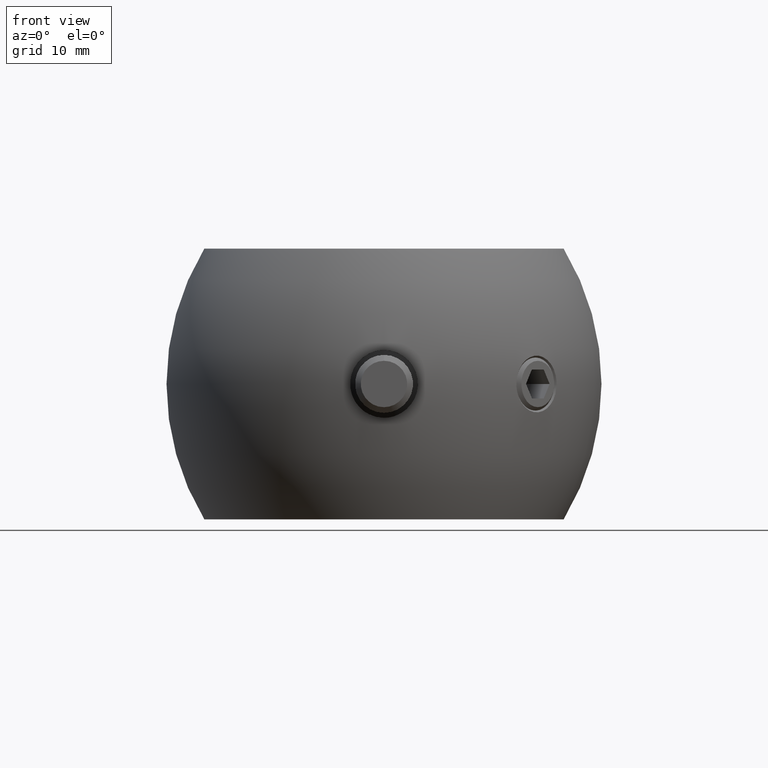
[diagram: clean part render]
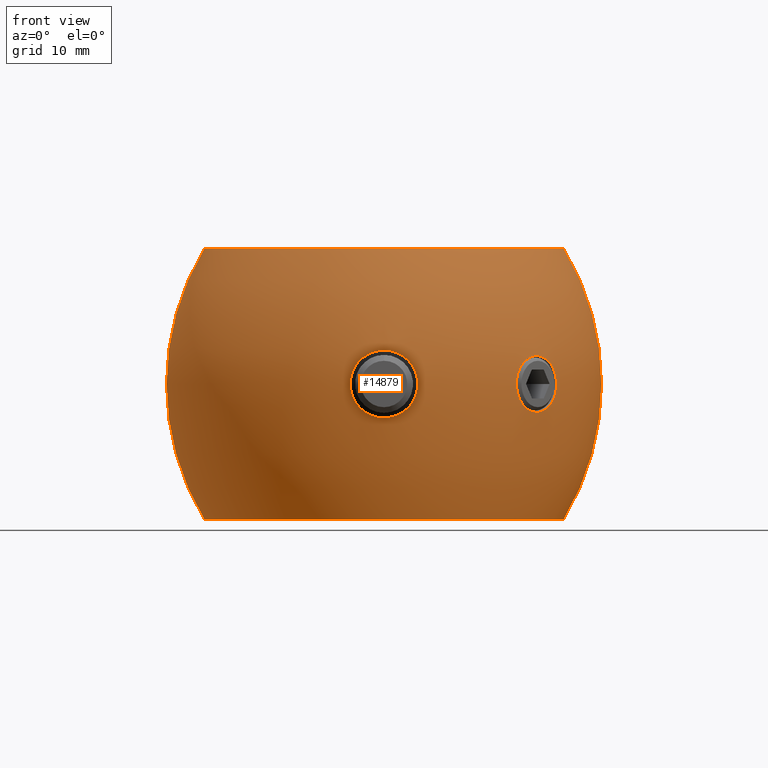
[diagram: same view with one face highlighted and labeled with its STEP entity id]
A machine part, front view. The second image highlights one B-rep face of the part: STEP entity #14879.
In plain terms, the highlighted toroidal blend (fillet) surface has major radius 4.5 mm and minor (blend) radius 27 mm.
Its self-contained STEP definition (entity closure, byte-faithful):
#87 = CARTESIAN_POINT ( 'NONE',  ( -2.636054769839903500, -22.24611148718643960, 2.313717903538718534 ) ) ;
#156 = CARTESIAN_POINT ( 'NONE',  ( -1.752568647007146430, -22.26074234995471457, 3.038236369988976282 ) ) ;
#163 = CARTESIAN_POINT ( 'NONE',  ( 14.07452576205326267, -17.48702692253786140, 1.686537269347121226 ) ) ;
#232 = CARTESIAN_POINT ( 'NONE',  ( 14.49937490066787937, -17.07597173101810029, 2.314854563820847311 ) ) ;
#312 = CARTESIAN_POINT ( 'NONE',  ( 14.42678072793478350, -17.14650586513689134, -2.231946754851112047 ) ) ;
#319 = CARTESIAN_POINT ( 'NONE',  ( 1.755802677963059777, -22.26069840967069524, -3.036302268960430872 ) ) ;
#376 = CARTESIAN_POINT ( 'NONE',  ( 13.73112644520099579, -17.81662382827775204, -0.6053072445539046109 ) ) ;
#382 = CARTESIAN_POINT ( 'NONE',  ( 3.477763543291899850, -22.22670003935306937, 0.4564514688398828013 ) ) ;
#441 = CARTESIAN_POINT ( 'NONE',  ( 15.54506048597273882, -16.04787891821417034, -2.920602461485179546 ) ) ;
#449 = CARTESIAN_POINT ( 'NONE',  ( 2.133817862500952067, -22.25516207144652370, 2.783716297770293391 ) ) ;
#591 = CARTESIAN_POINT ( 'NONE',  ( 1.128282969336798169, -22.26755440505721140, 3.321101806572006598 ) ) ;
#775 = CARTESIAN_POINT ( 'NONE',  ( 4.500000000000000888, -5.510910596163089556E-16, 0.000000000000000000 ) ) ;
#910 = CIRCLE ( 'NONE', #17827, 18.58679276123038804 ) ;
#1004 = B_SPLINE_CURVE_WITH_KNOTS ( 'NONE', 3,
 ( #3636, #17372, #12211, #10427, #376, #10638, #15486, #5277, #12291, #2074, #13934, #20600, #3785, #15694, #163, #1865, #3713, #232, #15620, #5421, #8848, #17224, #1935, #19087, #21224, #5559, #5699, #3854, #17790, #12578, #16068, #9065, #15908, #2360, #14270, #5849, #7390, #12428 ),
 .UNSPECIFIED., .F., .F.,
 ( 4, 2, 2, 2, 2, 2, 2, 2, 2, 2, 2, 2, 2, 2, 2, 2, 2, 2, 4 ),
 ( 3.580357266461583750E-05, 0.03128581485029084674, 0.06253582612791706852, 0.09378583740554330417, 0.1250358486831695537, 0.1562858599607958032, 0.1719108655996089696, 0.1875358712384221360, 0.2187858825160488296, 0.2500358937936755233, 0.2812859050713021891, 0.3125359163489288550, 0.3437859276265555208, 0.3750359389041821867, 0.3906609445429955474, 0.4062859501818088526, 0.4375359614594356295, 0.4687859727370622953, 0.5000359840146890722 ),
 .UNSPECIFIED. ) ;
#1416 = CARTESIAN_POINT ( 'NONE',  ( -3.322402730554638417, -22.23068354009784287, -1.124406855292983343 ) ) ;
#1484 = CARTESIAN_POINT ( 'NONE',  ( -3.387656487118473336, -22.22902001233188329, 0.9092316706515898295 ) ) ;
#1658 = CARTESIAN_POINT ( 'NONE',  ( 0.000000000000000000, 0.000000000000000000, 0.000000000000000000 ) ) ;
#1751 = CARTESIAN_POINT ( 'NONE',  ( -18.58679276123038804, 2.276225626145599495E-15, -13.99999999999999822 ) ) ;
#1862 = CARTESIAN_POINT ( 'NONE',  ( 17.52769042344284856, -14.03235436744223463, -1.608840742123130552 ) ) ;
#1865 = CARTESIAN_POINT ( 'NONE',  ( 14.19958612181998348, -17.36644332669997226, 1.916942017612078386 ) ) ;
#1935 = CARTESIAN_POINT ( 'NONE',  ( 15.36776116054227970, -16.22385622207960409, 2.879402078466278159 ) ) ;
#2005 = CARTESIAN_POINT ( 'NONE',  ( 16.15535362890569360, -15.43670857852692713, -2.893269995321523069 ) ) ;
#2039 = AXIS2_PLACEMENT_3D ( 'NONE', #1658, #20531, #16931 ) ;
#2074 = CARTESIAN_POINT ( 'NONE',  ( 13.79177725741186933, -17.75859018651640397, 0.9170787822494481656 ) ) ;
#2080 = CARTESIAN_POINT ( 'NONE',  ( 1.551643404138435267, -22.26327749582508631, -3.145665670389239388 ) ) ;
#2124 = EDGE_LOOP ( 'NONE', ( #2899, #12921 ) ) ;
#2157 = CARTESIAN_POINT ( 'NONE',  ( 1.127018110254823569, -22.26756543554039780, -3.321541802029492896 ) ) ;
#2326 = VERTEX_POINT ( 'NONE', #18958 ) ;
#2360 = CARTESIAN_POINT ( 'NONE',  ( 17.14596397229896851, -14.42734162629428596, 2.232764836883649906 ) ) ;
#2422 = B_SPLINE_CURVE_WITH_KNOTS ( 'NONE', 3,
 ( #4637, #18218, #4795, #6475, #19785, #11280, #4488, #16412, #4874, #6549, #10300, #17179, #1862, #19147, #6349, #9929, #11648, #17290, #15408, #7184, #2005, #5217, #5485, #441, #8924, #19148, #20875, #12072, #20806, #312, #14002, #13860, #8696, #6980 ),
 .UNSPECIFIED., .F., .F.,
 ( 4, 2, 2, 2, 2, 2, 2, 2, 2, 2, 2, 2, 2, 2, 2, 2, 4 ),
 ( 0.5000359840146890722, 0.5312859727370624618, 0.5625359614594358515, 0.5937859501818092411, 0.6250359389041827418, 0.6562859276265561315, 0.6875359163489295211, 0.7500358937936761894, 0.7812858825160498011, 0.7969108768772366069, 0.8125358712384235238, 0.8437858599607970245, 0.8750358486831705251, 0.9062858374055440258, 0.9375358261279176375, 0.9687858148502911382, 1.000035803572664639 ),
 .UNSPECIFIED. ) ;
#2729 = CARTESIAN_POINT ( 'NONE',  ( -3.320309168915752895, -22.23073552015256382, 1.130265281610048023 ) ) ;
#2899 = ORIENTED_EDGE ( 'NONE', *, *, #7484, .T. ) ;
#3112 = CARTESIAN_POINT ( 'NONE',  ( -3.145673842606141690, -22.23497318252552191, 1.551350592207500378 ) ) ;
#3636 = CARTESIAN_POINT ( 'NONE',  ( 13.98618652761251546, -17.57203174755905195, -1.494217667136909400 ) ) ;
#3713 = CARTESIAN_POINT ( 'NONE',  ( 14.29263461983206263, -17.27651359023667865, 2.057629418468958971 ) ) ;
#3720 = CARTESIAN_POINT ( 'NONE',  ( 2.781794847444853946, -22.24310699715626072, 2.136461789129161737 ) ) ;
#3785 = CARTESIAN_POINT ( 'NONE',  ( 13.96255126729314355, -17.59476613810143064, 1.440767580311695495 ) ) ;
#3854 = CARTESIAN_POINT ( 'NONE',  ( 16.37812529244224535, -15.21161893539405874, 2.819887269090419313 ) ) ;
#3858 = CARTESIAN_POINT ( 'NONE',  ( 0.2309367144057017651, -22.27218706045511709, 3.500000000000015099 ) ) ;
#3933 = CARTESIAN_POINT ( 'NONE',  ( -4.500000000000000888, 0.000000000000000000, 0.000000000000000000 ) ) ;
#4436 = ORIENTED_EDGE ( 'NONE', *, *, #15174, .T. ) ;
#4441 = CARTESIAN_POINT ( 'NONE',  ( -1.759685325299306324, -22.26117953076266431, -3.059635049065956292 ) ) ;
#4488 = CARTESIAN_POINT ( 'NONE',  ( 17.86014180560210818, -13.68559593304097000, 0.02803167840662328450 ) ) ;
#4637 = CARTESIAN_POINT ( 'NONE',  ( 17.57312976432960028, -13.98504458282721963, 1.491544816991765554 ) ) ;
#4679 = CIRCLE ( 'NONE', #18478, 18.58679276123038804 ) ;
#4795 = CARTESIAN_POINT ( 'NONE',  ( 17.69686858477625080, -13.85620217417026190, 1.153277679971782987 ) ) ;
#4874 = CARTESIAN_POINT ( 'NONE',  ( 17.82487670702472826, -13.72250466152375914, -0.5453523320907576188 ) ) ;
#5016 = VERTEX_POINT ( 'NONE', #20831 ) ;
#5066 = CARTESIAN_POINT ( 'NONE',  ( -0.4581349390610389150, -22.27158383889389626, 3.477374235141815983 ) ) ;
#5113 = AXIS2_PLACEMENT_3D ( 'NONE', #775, #17551, #7298 ) ;
#5141 = CARTESIAN_POINT ( 'NONE',  ( -1.551548640971885940, -22.26327767110064215, 3.145667284698212551 ) ) ;
#5217 = CARTESIAN_POINT ( 'NONE',  ( 15.95378704451178642, -15.63956974788807308, -2.933614206126256896 ) ) ;
#5277 = CARTESIAN_POINT ( 'NONE',  ( 13.70100122091173667, -17.84542043438733572, 0.3534026857331997729 ) ) ;
#5325 = EDGE_LOOP ( 'NONE', ( #6318, #4436, #12775, #6984 ) ) ;
#5421 = CARTESIAN_POINT ( 'NONE',  ( 14.84895789974012814, -16.73486820214152004, 2.624636134593558712 ) ) ;
#5485 = CARTESIAN_POINT ( 'NONE',  ( 15.81857893726615316, -15.77504977628412597, -2.941851928695710328 ) ) ;
#5494 = CARTESIAN_POINT ( 'NONE',  ( 0.9063428213195908745, -22.26927656993677118, 3.388293542909587952 ) ) ;
#5559 = CARTESIAN_POINT ( 'NONE',  ( 16.04718177492244280, -15.54576114801281861, 2.920703595870289160 ) ) ;
#5564 = CARTESIAN_POINT ( 'NONE',  ( 3.477342641479975960, -22.22671093107145879, -0.4588508797462771405 ) ) ;
#5610 = CIRCLE ( 'NONE', #12709, 27.00000000000000000 ) ;
#5633 = CARTESIAN_POINT ( 'NONE',  ( 3.037352153267143251, -22.23752029310674416, 1.754235858350625898 ) ) ;
#5699 = CARTESIAN_POINT ( 'NONE',  ( 16.18135112701499168, -15.41063963960030492, 2.891389881111555926 ) ) ;
#5711 = VERTEX_POINT ( 'NONE', #13168 ) ;
#5849 = CARTESIAN_POINT ( 'NONE',  ( 17.42551178879283214, -14.13841142672572815, 1.813779782782619421 ) ) ;
#6143 = EDGE_CURVE ( 'NONE', #18177, #2326, #12194, .T. ) ;
#6145 = DIRECTION ( 'NONE',  ( -0.000000000000000000, -0.000000000000000000, 1.000000000000000000 ) ) ;
#6146 = CARTESIAN_POINT ( 'NONE',  ( -2.149975294484196109, -22.25516509456628000, -2.800233003548148858 ) ) ;
#6318 = ORIENTED_EDGE ( 'NONE', *, *, #7692, .F. ) ;
#6349 = CARTESIAN_POINT ( 'NONE',  ( 17.08301717011942955, -14.49263050957463683, -2.331287139572185918 ) ) ;
#6475 = CARTESIAN_POINT ( 'NONE',  ( 17.78556930355667021, -13.76360327532514383, 0.7888299928734470168 ) ) ;
#6549 = CARTESIAN_POINT ( 'NONE',  ( 17.75839298352629569, -13.79198368357229043, -0.9177599978235861933 ) ) ;
#6678 = CARTESIAN_POINT ( 'NONE',  ( -3.500172752324278491, -22.22610623693903165, -0.2256888710233176110 ) ) ;
#6980 = CARTESIAN_POINT ( 'NONE',  ( 13.98618652761251546, -17.57203174755905195, -1.494217667136909400 ) ) ;
#6984 = ORIENTED_EDGE ( 'NONE', *, *, #17236, .F. ) ;
#7036 = EDGE_LOOP ( 'NONE', ( #7120, #10372 ) ) ;
#7054 = CARTESIAN_POINT ( 'NONE',  ( 2.312524955957335759, -22.25213547850096418, -2.637320877284242471 ) ) ;
#7120 = ORIENTED_EDGE ( 'NONE', *, *, #19510, .T. ) ;
#7184 = CARTESIAN_POINT ( 'NONE',  ( 16.22287916346203929, -15.36859625555489473, -2.874929308554141194 ) ) ;
#7298 = DIRECTION ( 'NONE',  ( -1.000000000000000000, 1.224646799147353207E-16, 0.000000000000000000 ) ) ;
#7390 = CARTESIAN_POINT ( 'NONE',  ( 17.50552281706925584, -14.05535761860706678, 1.656311458938468428 ) ) ;
#7484 = EDGE_CURVE ( 'NONE', #2326, #18177, #10343, .T. ) ;
#7576 = FACE_OUTER_BOUND ( 'NONE', #5325, .T. ) ;
#7692 = EDGE_CURVE ( 'NONE', #20243, #12567, #18660, .T. ) ;
#7770 = CARTESIAN_POINT ( 'NONE',  ( -0.4554496671081719739, -22.27159583103835772, -3.477834420321250786 ) ) ;
#8394 = CARTESIAN_POINT ( 'NONE',  ( -2.133286607307621097, -22.25517097108459197, 2.784145354229586644 ) ) ;
#8696 = CARTESIAN_POINT ( 'NONE',  ( 14.05690483319466999, -17.50403288545325964, -1.659544539685919862 ) ) ;
#8779 = CARTESIAN_POINT ( 'NONE',  ( 2.314002385372197601, -22.25210781777686009, 2.635826709670634482 ) ) ;
#8792 = VERTEX_POINT ( 'NONE', #17237 ) ;
#8848 = CARTESIAN_POINT ( 'NONE',  ( 14.97284816944815056, -16.61338450035819037, 2.705384513787795875 ) ) ;
#8856 = CARTESIAN_POINT ( 'NONE',  ( 3.387801150846020182, -22.22901635238282836, 0.9088402328147129339 ) ) ;
#8924 = CARTESIAN_POINT ( 'NONE',  ( 15.40808181237763463, -16.18388615566087552, -2.890675033947071704 ) ) ;
#9065 = CARTESIAN_POINT ( 'NONE',  ( 16.81539082930162010, -14.76669499277320519, 2.563338736444773502 ) ) ;
#9073 = CARTESIAN_POINT ( 'NONE',  ( 3.499931741954563691, -22.22611256235300203, 0.2292404514989138942 ) ) ;
#9435 = CARTESIAN_POINT ( 'NONE',  ( -3.037775263816664850, -22.23750948663882099, -1.753254503068075509 ) ) ;
#9494 = CARTESIAN_POINT ( 'NONE',  ( -3.147165898550166485, -22.23493813091124238, -1.548546895392483913 ) ) ;
#9571 = CARTESIAN_POINT ( 'NONE',  ( -1.127790137824620675, -22.26755619567623867, -3.321152537058809084 ) ) ;
#9929 = CARTESIAN_POINT ( 'NONE',  ( 16.73349492019087492, -14.85036207476072434, -2.625739424733983807 ) ) ;
#9957 = CARTESIAN_POINT ( 'NONE',  ( -3.499825220994961850, -22.22611535803776661, 0.2310155516510769003 ) ) ;
#9994 = FACE_BOUND ( 'NONE', #7036, .T. ) ;
#10193 = CARTESIAN_POINT ( 'NONE',  ( -2.313305870839868383, -22.25211979701150966, 2.636416362164578864 ) ) ;
#10300 = CARTESIAN_POINT ( 'NONE',  ( 17.71192944873756403, -13.84050715008223520, -1.100788165792986550 ) ) ;
#10329 = CARTESIAN_POINT ( 'NONE',  ( 1.526577745876971690E-11, -22.27218706045510999, -3.500000000000000000 ) ) ;
#10343 = B_SPLINE_CURVE_WITH_KNOTS ( 'NONE', 3,
 ( #14144, #3858, #20809, #5494, #591, #19092, #15847, #449, #8779, #10505, #3720, #5633, #17447, #19154, #8856, #382, #9073, #21017, #5564, #10576, #20884, #17514, #15914, #12297, #12370, #7054, #19029, #319, #2080, #2157, #14062, #12217, #15773, #13941 ),
 .UNSPECIFIED., .F., .F.,
 ( 4, 2, 2, 2, 2, 2, 2, 2, 2, 2, 2, 2, 2, 2, 2, 2, 4 ),
 ( 0.008197204575752894615, 0.008881126807070795215, 0.009565049038388695815, 0.01024897126970659642, 0.01093289350102449875, 0.01161681573234239935, 0.01230073796366030169, 0.01298466019497820229, 0.01366858242629610462, 0.01435250465761400522, 0.01503642688893190582, 0.01572034912024980469, 0.01640427135156770702, 0.01708819358288560936, 0.01777211581420350822, 0.01845603804552141403, 0.01913996027683931289 ),
 .UNSPECIFIED. ) ;
#10372 = ORIENTED_EDGE ( 'NONE', *, *, #19454, .T. ) ;
#10427 = CARTESIAN_POINT ( 'NONE',  ( 13.76402632271193305, -17.78516562686281688, -0.7905027850608266071 ) ) ;
#10505 = CARTESIAN_POINT ( 'NONE',  ( 2.636997926935021663, -22.24609293718735259, 2.312667597442775946 ) ) ;
#10576 = CARTESIAN_POINT ( 'NONE',  ( 3.387892389651895542, -22.22901394848458878, -0.9080975345400044141 ) ) ;
#10638 = CARTESIAN_POINT ( 'NONE',  ( 13.69158329216464942, -17.85442399709397066, -0.2227104493019432807 ) ) ;
#11280 = CARTESIAN_POINT ( 'NONE',  ( 17.85440320525242086, -13.69160493141399471, 0.2216138788502649004 ) ) ;
#11648 = CARTESIAN_POINT ( 'NONE',  ( 16.61085004694762191, -14.97542567124821566, -2.706814147456126030 ) ) ;
#11844 = CARTESIAN_POINT ( 'NONE',  ( -2.313574076701304266E-13, -22.27218706045511354, 3.500000000000000000 ) ) ;
#12063 = CARTESIAN_POINT ( 'NONE',  ( -1.128092891315626289, -22.26755536206816899, 3.321134185769295755 ) ) ;
#12072 = CARTESIAN_POINT ( 'NONE',  ( 14.76560903763261479, -16.81645361938981509, -2.562612578879155834 ) ) ;
#12194 = B_SPLINE_CURVE_WITH_KNOTS ( 'NONE', 3,
 ( #16303, #18020, #7770, #20283, #9571, #4441, #6146, #12951, #21523, #9435, #9494, #1416, #13339, #13412, #6678, #9957, #16755, #1484, #2729, #3112, #15030, #18865, #87, #10193, #8394, #156, #5141, #12063, #13776, #5066, #17283, #11844 ),
 .UNSPECIFIED., .F., .F.,
 ( 4, 2, 2, 2, 2, 2, 2, 2, 2, 2, 2, 2, 2, 2, 2, 4 ),
 ( 0.01913996027683931289, 0.01982376912422701906, 0.02050757797161472523, 0.02187519566639013757, 0.02255900451377784027, 0.02324281336116554644, 0.02392662220855325261, 0.02461043105594095878, 0.02529423990332866495, 0.02597804875071637112, 0.02666185759810407729, 0.02734566644549177999, 0.02802947529287948616, 0.02871328414026719233, 0.02939709298765489850, 0.03008090183504260468 ),
 .UNSPECIFIED. ) ;
#12211 = CARTESIAN_POINT ( 'NONE',  ( 13.85587905529235719, -17.69717653515419187, -1.151998237030226191 ) ) ;
#12217 = CARTESIAN_POINT ( 'NONE',  ( 0.4605611833140074163, -22.27157609187907283, -3.477082492250608059 ) ) ;
#12291 = CARTESIAN_POINT ( 'NONE',  ( 13.72214733158875433, -17.82521894755767633, 0.5430086884132476754 ) ) ;
#12297 = CARTESIAN_POINT ( 'NONE',  ( 2.783338875253613676, -22.24307373646234964, -2.134262694448708420 ) ) ;
#12301 = VERTEX_POINT ( 'NONE', #21344 ) ;
#12370 = CARTESIAN_POINT ( 'NONE',  ( 2.638717881431637213, -22.24606076000802091, -2.310930770035686699 ) ) ;
#12428 = CARTESIAN_POINT ( 'NONE',  ( 17.57312976432960028, -13.98504458282721963, 1.491544816991765554 ) ) ;
#12434 = DIRECTION ( 'NONE',  ( -0.000000000000000000, -0.000000000000000000, 1.000000000000000000 ) ) ;
#12567 = VERTEX_POINT ( 'NONE', #15716 ) ;
#12578 = CARTESIAN_POINT ( 'NONE',  ( 16.57021658949332021, -15.01663789198484622, 2.725628559966549513 ) ) ;
#12601 = EDGE_CURVE ( 'NONE', #8792, #5016, #5610, .T. ) ;
#12709 = AXIS2_PLACEMENT_3D ( 'NONE', #3933, #17317, #13879 ) ;
#12775 = ORIENTED_EDGE ( 'NONE', *, *, #12601, .T. ) ;
#12880 = CARTESIAN_POINT ( 'NONE',  ( 0.000000000000000000, 0.000000000000000000, -13.99999999999999822 ) ) ;
#12921 = ORIENTED_EDGE ( 'NONE', *, *, #6143, .T. ) ;
#12951 = CARTESIAN_POINT ( 'NONE',  ( -2.639945837340275325, -22.24603666609257857, -2.309569361628467377 ) ) ;
#13168 = CARTESIAN_POINT ( 'NONE',  ( 17.57312976432960028, -13.98504458282721963, 1.491544816991765554 ) ) ;
#13339 = CARTESIAN_POINT ( 'NONE',  ( -3.388375966358039726, -22.22900160012636306, -0.9061987698745682662 ) ) ;
#13412 = CARTESIAN_POINT ( 'NONE',  ( -3.477479106649378870, -22.22670731490297769, -0.4576319074671214571 ) ) ;
#13776 = CARTESIAN_POINT ( 'NONE',  ( -0.9055496208357328713, -22.26928211430250215, 3.388509860959659115 ) ) ;
#13860 = CARTESIAN_POINT ( 'NONE',  ( 14.13880834698480271, -17.42512837138245985, -1.814371741649793535 ) ) ;
#13879 = DIRECTION ( 'NONE',  ( 0.000000000000000000, 0.000000000000000000, -1.000000000000000000 ) ) ;
#13934 = CARTESIAN_POINT ( 'NONE',  ( 13.83967059975432612, -17.71273119480849090, 1.097954892104494373 ) ) ;
#13941 = CARTESIAN_POINT ( 'NONE',  ( 1.526577745876971690E-11, -22.27218706045510999, -3.500000000000000000 ) ) ;
#14002 = CARTESIAN_POINT ( 'NONE',  ( 14.32392321464142704, -17.24619755706801882, -2.101049697506521152 ) ) ;
#14062 = CARTESIAN_POINT ( 'NONE',  ( 0.9087621473185780729, -22.26926079271914105, -3.387679238223748168 ) ) ;
#14144 = CARTESIAN_POINT ( 'NONE',  ( -2.313574076701304266E-13, -22.27218706045511354, 3.500000000000000000 ) ) ;
#14270 = CARTESIAN_POINT ( 'NONE',  ( 17.24564035017930053, -14.32449993058491344, 2.101920078917720147 ) ) ;
#14879 = ADVANCED_FACE ( 'NONE', ( #7576, #9994, #19363 ), #15873, .T. ) ;
#15030 = CARTESIAN_POINT ( 'NONE',  ( -3.037205604208558452, -22.23752393375755076, 1.754552625779593589 ) ) ;
#15174 = EDGE_CURVE ( 'NONE', #20243, #8792, #4679, .T. ) ;
#15408 = CARTESIAN_POINT ( 'NONE',  ( 16.35541048314199131, -15.23462193959140087, -2.829099891053470373 ) ) ;
#15486 = CARTESIAN_POINT ( 'NONE',  ( 13.68565124070208938, -17.86008965066967136, -0.02877981896926197145 ) ) ;
#15563 = CARTESIAN_POINT ( 'NONE',  ( 0.000000000000000000, 0.000000000000000000, 13.99999999999999822 ) ) ;
#15620 = CARTESIAN_POINT ( 'NONE',  ( 14.61238449039885978, -16.96600999407246491, 2.429805130610697361 ) ) ;
#15694 = CARTESIAN_POINT ( 'NONE',  ( 14.03516235791450306, -17.52492797264276447, 1.606135922753768819 ) ) ;
#15716 = CARTESIAN_POINT ( 'NONE',  ( -18.58679276123038804, 2.276225626145599495E-15, 13.99999999999999822 ) ) ;
#15773 = CARTESIAN_POINT ( 'NONE',  ( 0.2285551211859214726, -22.27218706045508512, -3.499999999999003908 ) ) ;
#15847 = CARTESIAN_POINT ( 'NONE',  ( 1.753612244212818805, -22.26072819874879372, 3.037614062672702175 ) ) ;
#15873 = TOROIDAL_SURFACE ( 'NONE', #2039, -4.500000000000000888, 27.00000000000000000 ) ;
#15908 = CARTESIAN_POINT ( 'NONE',  ( 16.92970062404709353, -14.64960897087174629, 2.464512138491390836 ) ) ;
#15914 = CARTESIAN_POINT ( 'NONE',  ( 3.036854981508635642, -22.23753066658021282, -1.754868759964601344 ) ) ;
#16068 = CARTESIAN_POINT ( 'NONE',  ( 16.63338144942127883, -14.95233983563919367, 2.687770588219575263 ) ) ;
#16303 = CARTESIAN_POINT ( 'NONE',  ( 1.526577745876971690E-11, -22.27218706045510999, -3.500000000000000000 ) ) ;
#16412 = CARTESIAN_POINT ( 'NONE',  ( 17.84523556688561996, -13.70119540949366232, -0.3560929182214258026 ) ) ;
#16755 = CARTESIAN_POINT ( 'NONE',  ( -3.477519796314406886, -22.22670637975661379, 0.4580117595358939586 ) ) ;
#16931 = DIRECTION ( 'NONE',  ( 1.000000000000000000, 0.000000000000000000, 0.000000000000000000 ) ) ;
#17179 = CARTESIAN_POINT ( 'NONE',  ( 17.59641994933873477, -13.96085407030574821, -1.446063759792102887 ) ) ;
#17224 = CARTESIAN_POINT ( 'NONE',  ( 15.23359998983947428, -16.35655310431655352, 2.833628983847514604 ) ) ;
#17236 = EDGE_CURVE ( 'NONE', #12567, #5016, #910, .T. ) ;
#17237 = CARTESIAN_POINT ( 'NONE',  ( 18.58679276123038804, 0.000000000000000000, -13.99999999999999822 ) ) ;
#17283 = CARTESIAN_POINT ( 'NONE',  ( -0.2308984286024464427, -22.27218706045511709, 3.499999999999986233 ) ) ;
#17290 = CARTESIAN_POINT ( 'NONE',  ( 16.41967675229232526, -15.16951057415499093, -2.802025610154345259 ) ) ;
#17317 = DIRECTION ( 'NONE',  ( 0.000000000000000000, -1.000000000000000000, 0.000000000000000000 ) ) ;
#17372 = CARTESIAN_POINT ( 'NONE',  ( 13.91546817102967637, -17.64003065871337128, -1.328890675229693619 ) ) ;
#17447 = CARTESIAN_POINT ( 'NONE',  ( 3.146310147498451393, -22.23495810669122719, 1.550066272786152943 ) ) ;
#17511 = DIRECTION ( 'NONE',  ( 1.000000000000000000, 0.000000000000000000, 0.000000000000000000 ) ) ;
#17514 = CARTESIAN_POINT ( 'NONE',  ( 3.146593589726805362, -22.23495162639742517, -1.549656320522462716 ) ) ;
#17551 = DIRECTION ( 'NONE',  ( 1.224646799147353207E-16, 1.000000000000000000, 0.000000000000000000 ) ) ;
#17790 = CARTESIAN_POINT ( 'NONE',  ( 16.44245742338017990, -15.14641108188304131, 2.791668741143684684 ) ) ;
#17827 = AXIS2_PLACEMENT_3D ( 'NONE', #15563, #12434, #17511 ) ;
#18020 = CARTESIAN_POINT ( 'NONE',  ( -0.2285172301837006537, -22.27218706045513841, -3.500000000000998313 ) ) ;
#18177 = VERTEX_POINT ( 'NONE', #10329 ) ;
#18218 = CARTESIAN_POINT ( 'NONE',  ( 17.64073666852193512, -13.91473159009804839, 1.326778299604355782 ) ) ;
#18478 = AXIS2_PLACEMENT_3D ( 'NONE', #12880, #6145, #19883 ) ;
#18660 = CIRCLE ( 'NONE', #5113, 27.00000000000000000 ) ;
#18865 = CARTESIAN_POINT ( 'NONE',  ( -2.781023616011375932, -22.24312341841358176, 2.137517355731397561 ) ) ;
#18958 = CARTESIAN_POINT ( 'NONE',  ( -2.313574076701304266E-13, -22.27218706045511354, 3.500000000000000000 ) ) ;
#19029 = CARTESIAN_POINT ( 'NONE',  ( 2.134846075078557615, -22.25514472081508544, -2.782877422409796520 ) ) ;
#19087 = CARTESIAN_POINT ( 'NONE',  ( 15.63757892978629194, -15.95576991473703821, 2.933372387610379217 ) ) ;
#19092 = CARTESIAN_POINT ( 'NONE',  ( 1.552566864371236033, -22.26326641927178684, 3.145198849066268121 ) ) ;
#19147 = CARTESIAN_POINT ( 'NONE',  ( 17.28492284046361860, -14.28412957642879455, -2.072704772292892184 ) ) ;
#19148 = CARTESIAN_POINT ( 'NONE',  ( 15.14358005996507650, -16.44538999055216522, -2.795235262025380862 ) ) ;
#19154 = CARTESIAN_POINT ( 'NONE',  ( 3.320802284667501159, -22.23072318734663710, 1.128824689855774999 ) ) ;
#19363 = FACE_BOUND ( 'NONE', #2124, .T. ) ;
#19454 = EDGE_CURVE ( 'NONE', #5711, #12301, #2422, .T. ) ;
#19510 = EDGE_CURVE ( 'NONE', #12301, #5711, #1004, .T. ) ;
#19785 = CARTESIAN_POINT ( 'NONE',  ( 17.81719107861093576, -13.73053316318134698, 0.6008532202655915144 ) ) ;
#19883 = DIRECTION ( 'NONE',  ( 1.000000000000000000, 0.000000000000000000, 0.000000000000000000 ) ) ;
#20243 = VERTEX_POINT ( 'NONE', #1751 ) ;
#20283 = CARTESIAN_POINT ( 'NONE',  ( -0.9060951915240709198, -22.26928112121858661, -3.388474311299578101 ) ) ;
#20531 = DIRECTION ( 'NONE',  ( -0.000000000000000000, -0.000000000000000000, 1.000000000000000000 ) ) ;
#20600 = CARTESIAN_POINT ( 'NONE',  ( 13.92983357341359429, -17.62619412324094625, 1.357277831544383639 ) ) ;
#20806 = CARTESIAN_POINT ( 'NONE',  ( 14.64687054778689124, -16.93236888760200287, -2.461886577141236820 ) ) ;
#20809 = CARTESIAN_POINT ( 'NONE',  ( 0.4590742314384877454, -22.27158046479215514, 3.477246222617767835 ) ) ;
#20831 = CARTESIAN_POINT ( 'NONE',  ( 18.58679276123038804, 0.000000000000000000, 13.99999999999999822 ) ) ;
#20875 = CARTESIAN_POINT ( 'NONE',  ( 15.01511586468448378, -16.57183665624293667, -2.729845630982322913 ) ) ;
#20884 = CARTESIAN_POINT ( 'NONE',  ( 3.321749997080149175, -22.23069978473802877, -1.126260577105967720 ) ) ;
#21017 = CARTESIAN_POINT ( 'NONE',  ( 3.500067946318511591, -22.22610898761412557, -0.2271513902626272063 ) ) ;
#21224 = CARTESIAN_POINT ( 'NONE',  ( 15.77470907616018714, -15.81891873086073730, 2.941831469282722100 ) ) ;
#21344 = CARTESIAN_POINT ( 'NONE',  ( 13.98618652761251546, -17.57203174755905195, -1.494217667136909400 ) ) ;
#21523 = CARTESIAN_POINT ( 'NONE',  ( -2.784654175385639086, -22.24304602661595354, -2.132529256421165531 ) ) ;